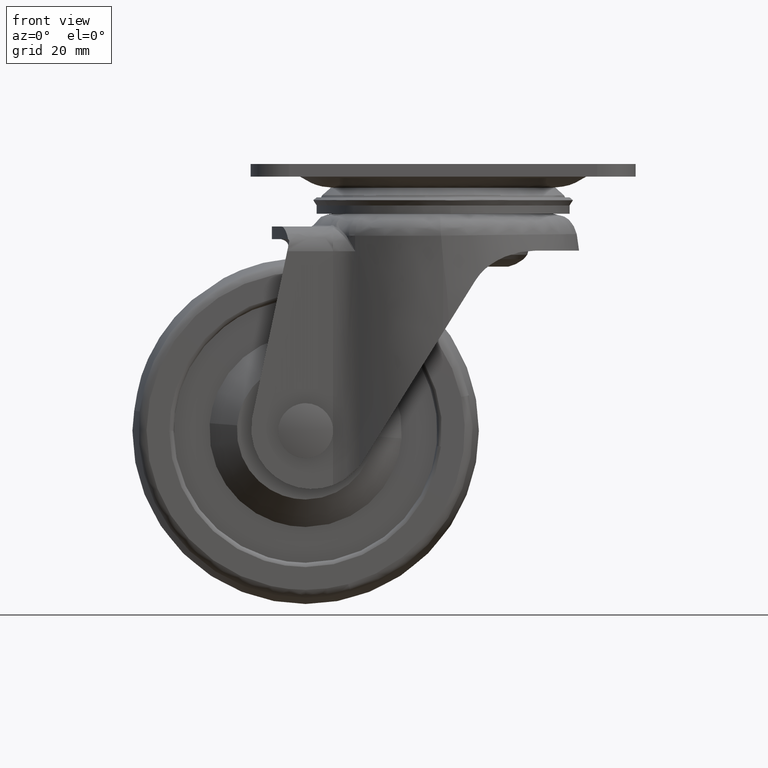
[diagram: clean part render]
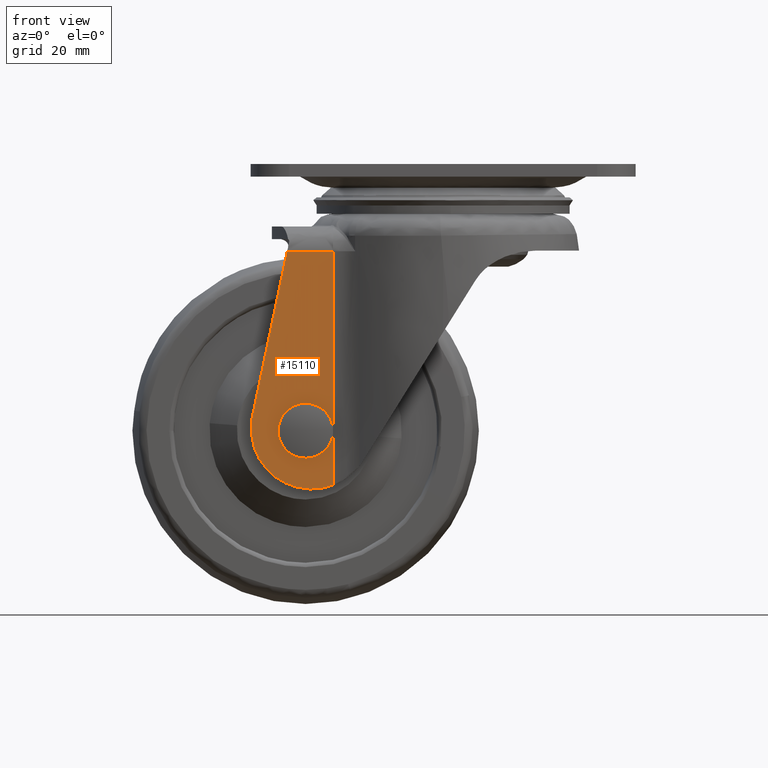
[diagram: same view with one face highlighted and labeled with its STEP entity id]
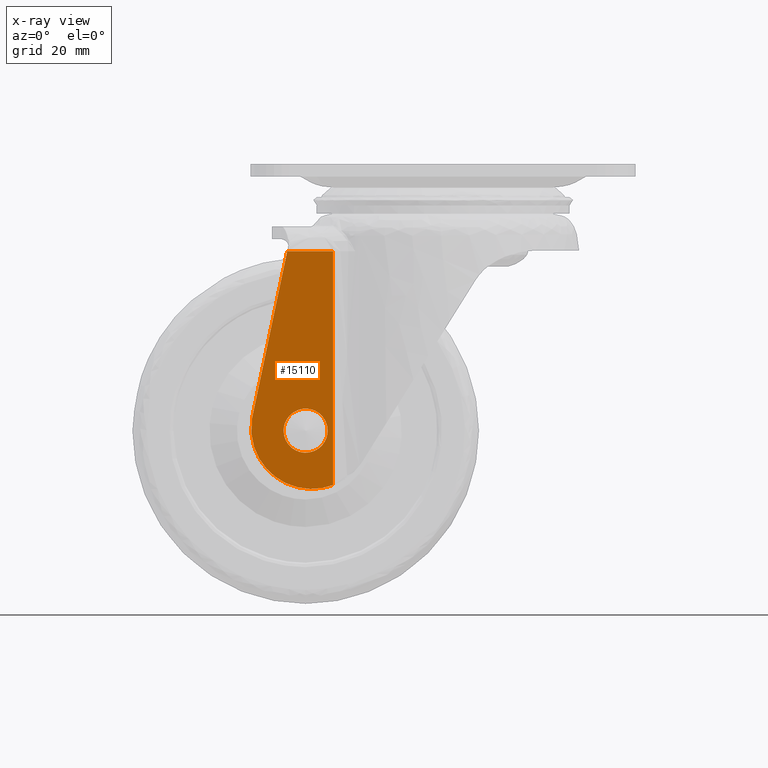
[diagram: x-ray of the same camera — body ghosted, the highlighted face saturated]
A machine part, front view. The second image highlights one B-rep face of the part: STEP entity #15110.
The next image is the same camera in x-ray: the body ghosted, the highlighted face saturated — about 0% of this face is hidden behind the body in this view.
In plain terms, the highlighted face is a freeform B-spline surface patch.
Its self-contained STEP definition (entity closure, byte-faithful):
#7549=CARTESIAN_POINT('',(-24.526682718839599,-17.805298319725480,-44.517849799303903));
#7550=VERTEX_POINT('',#7549);
#7556=CARTESIAN_POINT('',(-29.010000000000002,-17.757598574342168,-48.499817999999998));
#7557=VERTEX_POINT('',#7556);
#7558=CARTESIAN_POINT('',(-24.526682718839609,-17.805298319725480,-44.517849799303903));
#7559=CARTESIAN_POINT('',(-24.762511280007072,-17.802789248512585,-44.489817999999993));
#7560=CARTESIAN_POINT('',(-25.0,-17.800262514229850,-44.489818000000000));
#7561=CARTESIAN_POINT('',(-29.010000000000002,-17.757598574342168,-44.489818000000014));
#7562=CARTESIAN_POINT('',(-29.010000000000002,-17.757598574342168,-48.499817999999998));
#7570=(BOUNDED_CURVE()B_SPLINE_CURVE(2,(#7558,#7559,#7560,#7561,#7562),.UNSPECIFIED.,.F.,.U.)B_SPLINE_CURVE_WITH_KNOTS((3,2,3),(0.229562473499788,0.250000000000000,0.500000000000000),.UNSPECIFIED.)CURVE()GEOMETRIC_REPRESENTATION_ITEM()RATIONAL_B_SPLINE_CURVE((0.956026754156807,0.976055948315071,1.0,0.707106781186548,1.0))REPRESENTATION_ITEM(''));
#7571=EDGE_CURVE('',#7550,#7557,#7570,.T.);
#7573=CARTESIAN_POINT('',(-25.244804643791390,-17.797657943004200,-52.502338541656002));
#7574=VERTEX_POINT('',#7573);
#7575=CARTESIAN_POINT('',(-29.010000000000002,-17.757598574342168,-48.499817999999998));
#7576=CARTESIAN_POINT('',(-29.010000000000005,-17.757598574342172,-52.272049327807231));
#7577=CARTESIAN_POINT('',(-25.244804643791394,-17.797657943004200,-52.502338541655995));
#7585=(BOUNDED_CURVE()B_SPLINE_CURVE(2,(#7575,#7576,#7577),.UNSPECIFIED.,.F.,.U.)B_SPLINE_CURVE_WITH_KNOTS((3,3),(0.500000000000000,0.739332962219843),.UNSPECIFIED.)CURVE()GEOMETRIC_REPRESENTATION_ITEM()RATIONAL_B_SPLINE_CURVE((1.0,0.719603993309088,0.976072041625782))REPRESENTATION_ITEM(''));
#7586=EDGE_CURVE('',#7557,#7574,#7585,.T.);
#7660=CARTESIAN_POINT('',(-20.989999999999998,-17.842926454117539,-48.499817999999998));
#7661=VERTEX_POINT('',#7660);
#7662=CARTESIAN_POINT('',(-25.244804643791390,-17.797657943004200,-52.502338541655995));
#7663=CARTESIAN_POINT('',(-25.122516581084678,-17.798959012970336,-52.509818000000010));
#7664=CARTESIAN_POINT('',(-25.0,-17.800262514229850,-52.509818000000003));
#7665=CARTESIAN_POINT('',(-20.990000000000006,-17.842926454117531,-52.509818000000003));
#7666=CARTESIAN_POINT('',(-20.989999999999998,-17.842926454117539,-48.499817999999998));
#7674=(BOUNDED_CURVE()B_SPLINE_CURVE(2,(#7662,#7663,#7664,#7665,#7666),.UNSPECIFIED.,.F.,.U.)B_SPLINE_CURVE_WITH_KNOTS((3,2,3),(0.739332962219843,0.750000000000000,1.0),.UNSPECIFIED.)CURVE()GEOMETRIC_REPRESENTATION_ITEM()RATIONAL_B_SPLINE_CURVE((0.976072041625783,0.987502787877461,1.0,0.707106781186548,1.0))REPRESENTATION_ITEM(''));
#7675=EDGE_CURVE('',#7574,#7661,#7674,.T.);
#7677=CARTESIAN_POINT('',(-20.989999999999998,-17.842926454117539,-48.499817999999998));
#7678=CARTESIAN_POINT('',(-20.989999999999998,-17.842926454117546,-44.938238151271534));
#7679=CARTESIAN_POINT('',(-24.526682718839609,-17.805298319725480,-44.517849799303903));
#7687=(BOUNDED_CURVE()B_SPLINE_CURVE(2,(#7677,#7678,#7679),.UNSPECIFIED.,.F.,.U.)B_SPLINE_CURVE_WITH_KNOTS((3,3),(0.0,0.229562473499788),.UNSPECIFIED.)CURVE()GEOMETRIC_REPRESENTATION_ITEM()RATIONAL_B_SPLINE_CURVE((1.0,0.731050832871477,0.956026754156807))REPRESENTATION_ITEM(''));
#7688=EDGE_CURVE('',#7661,#7550,#7687,.T.);
#12897=CARTESIAN_POINT('',(-20.019497922536299,-17.853252000824199,-15.857309212873851));
#12898=VERTEX_POINT('',#12897);
#12998=CARTESIAN_POINT('',(-28.345589820127351,-17.764667491044101,-15.857309212873750));
#12999=VERTEX_POINT('',#12998);
#13013=CARTESIAN_POINT('',(-20.019497922536299,-17.853252000824199,-15.857309212873851));
#13014=CARTESIAN_POINT('',(-28.345589820127351,-17.764667491044101,-15.857309212873750));
#13015=QUASI_UNIFORM_CURVE('',1,(#13013,#13014),.UNSPECIFIED.,.F.,.U.);
#13016=EDGE_CURVE('',#12898,#12999,#13015,.T.);
#13725=CARTESIAN_POINT('',(-34.745005646522102,-17.696581632656699,-46.259749379837203));
#13726=VERTEX_POINT('',#13725);
#13786=CARTESIAN_POINT('',(-20.019497922535901,-17.853252000823598,-58.392616629469401));
#13787=VERTEX_POINT('',#13786);
#13809=CARTESIAN_POINT('',(-34.745005646522102,-17.696581632656699,-46.259749379837203));
#13810=CARTESIAN_POINT('',(-35.810440731135074,-17.685246056994774,-52.539216016038019));
#13811=CARTESIAN_POINT('',(-30.894833408678071,-17.737545103208440,-56.589358952539257));
#13812=CARTESIAN_POINT('',(-25.979226086221047,-17.789844149422102,-60.639501889040503));
#13813=CARTESIAN_POINT('',(-20.019497922535901,-17.853252000823598,-58.392616629469401));
#13821=(BOUNDED_CURVE()B_SPLINE_CURVE(2,(#13809,#13810,#13811,#13812,#13813),.UNSPECIFIED.,.F.,.U.)B_SPLINE_CURVE_WITH_KNOTS((3,2,3),(0.0,0.500000000000000,1.0),.UNSPECIFIED.)CURVE()GEOMETRIC_REPRESENTATION_ITEM()RATIONAL_B_SPLINE_CURVE((1.0,0.865399324793027,1.0,0.865399324793027,1.0))REPRESENTATION_ITEM(''));
#13822=EDGE_CURVE('',#13726,#13787,#13821,.T.);
#14148=CARTESIAN_POINT('',(-34.745005646522102,-17.696581632656699,-46.259749379837203));
#14149=CARTESIAN_POINT('',(-28.345589820127351,-17.764667491044101,-15.857309212873750));
#14150=QUASI_UNIFORM_CURVE('',1,(#14148,#14149),.UNSPECIFIED.,.F.,.U.);
#14151=EDGE_CURVE('',#13726,#12999,#14150,.T.);
#15058=CARTESIAN_POINT('',(-20.019497922535901,-17.853252000823598,-58.392616629469401));
#15059=CARTESIAN_POINT('',(-20.019497922536299,-17.853252000824199,-15.857309212873851));
#15060=QUASI_UNIFORM_CURVE('',1,(#15058,#15059),.UNSPECIFIED.,.F.,.U.);
#15061=EDGE_CURVE('',#13787,#12898,#15060,.T.);
#15093=CARTESIAN_POINT('',(-35.638720660121493,-17.687073053201079,-61.259125853117077));
#15094=CARTESIAN_POINT('',(-19.276434542560018,-17.861157739321978,-61.259125853117077));
#15095=CARTESIAN_POINT('',(-35.638720660121493,-17.687073053201079,-13.697376001904940));
#15096=CARTESIAN_POINT('',(-19.276434542560018,-17.861157739321978,-13.697376001904940));
#15097=B_SPLINE_SURFACE_WITH_KNOTS('',1,1,((#15093,#15095),(#15094,#15096)),.UNSPECIFIED.,.F.,.F.,.U.,(2,2),(2,2),(0.0,16.363212168485951),(0.0,47.561749851212127),.UNSPECIFIED.);
#15098=ORIENTED_EDGE('',*,*,#15061,.T.);
#15099=ORIENTED_EDGE('',*,*,#13016,.T.);
#15100=ORIENTED_EDGE('',*,*,#14151,.F.);
#15101=ORIENTED_EDGE('',*,*,#13822,.T.);
#15102=EDGE_LOOP('',(#15098,#15099,#15100,#15101));
#15103=FACE_OUTER_BOUND('',#15102,.T.);
#15104=ORIENTED_EDGE('',*,*,#7586,.F.);
#15105=ORIENTED_EDGE('',*,*,#7571,.F.);
#15106=ORIENTED_EDGE('',*,*,#7688,.F.);
#15107=ORIENTED_EDGE('',*,*,#7675,.F.);
#15108=EDGE_LOOP('',(#15104,#15105,#15106,#15107));
#15109=FACE_BOUND('',#15108,.T.);
#15110=ADVANCED_FACE('',(#15103,#15109),#15097,.T.);